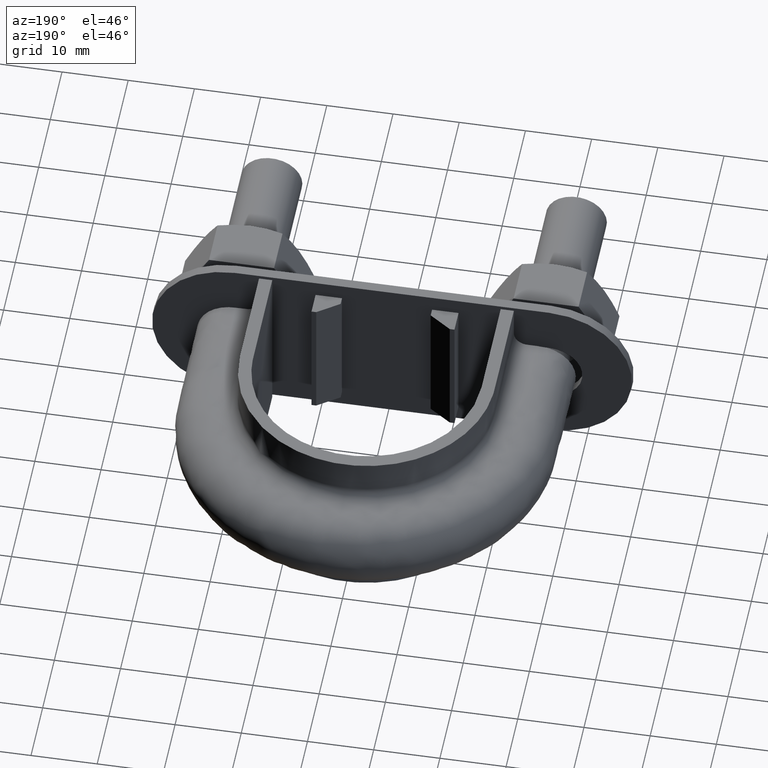
[diagram: clean part render]
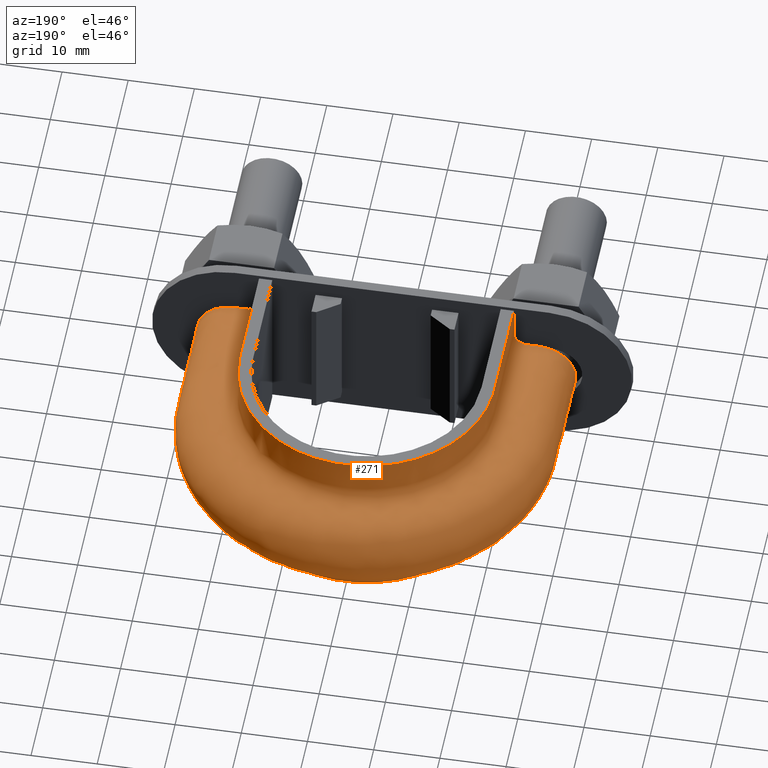
[diagram: same view with one face highlighted and labeled with its STEP entity id]
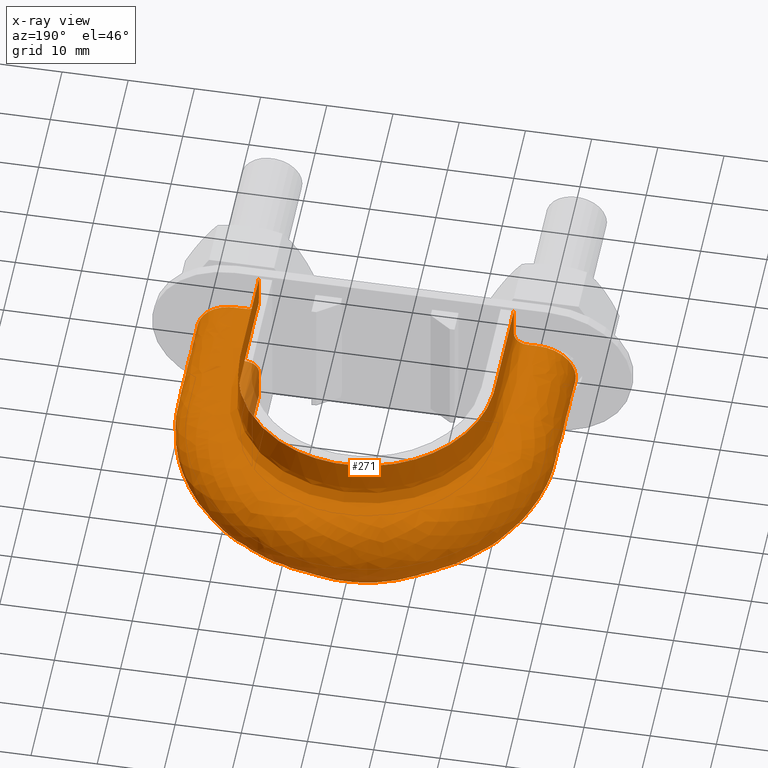
[diagram: x-ray of the same camera — body ghosted, the highlighted face saturated]
A machine part, auxiliary view. The second image highlights one B-rep face of the part: STEP entity #271.
The next image is the same camera in x-ray: the body ghosted, the highlighted face saturated — about 1% of this face is hidden behind the body in this view.
In plain terms, the highlighted face is a freeform B-spline surface patch.
Its self-contained STEP definition (entity closure, byte-faithful):
#271 = ADVANCED_FACE( '', ( #390 ), #391, .F. );
#390 = FACE_OUTER_BOUND( '', #792, .T. );
#391 = B_SPLINE_SURFACE_WITH_KNOTS( '', 3, 3, ( ( #793, #794, #795, #796, #797, #798, #799, #800, #801, #802, #803, #804, #805, #806, #807, #808, #809 ), ( #810, #811, #812, #813, #814, #815, #816, #817, #818, #819, #820, #821, #822, #823, #824, #825, #826 ), ( #827, #828, #829, #830, #831, #832, #833, #834, #835, #836, #837, #838, #839, #840, #841, #842, #843 ), ( #844, #845, #846, #847, #848, #849, #850, #851, #852, #853, #854, #855, #856, #857, #858, #859, #860 ), ( #861, #862, #863, #864, #865, #866, #867, #868, #869, #870, #871, #872, #873, #874, #875, #876, #877 ), ( #878, #879, #880, #881, #882, #883, #884, #885, #886, #887, #888, #889, #890, #891, #892, #893, #894 ), ( #895, #896, #897, #898, #899, #900, #901, #902, #903, #904, #905, #906, #907, #908, #909, #910, #911 ), ( #912, #913, #914, #915, #916, #917, #918, #919, #920, #921, #922, #923, #924, #925, #926, #927, #928 ), ( #929, #930, #931, #932, #933, #934, #935, #936, #937, #938, #939, #940, #941, #942, #943, #944, #945 ), ( #946, #947, #948, #949, #950, #951, #952, #953, #954, #955, #956, #957, #958, #959, #960, #961, #962 ), ( #963, #964, #965, #966, #967, #968, #969, #970, #971, #972, #973, #974, #975, #976, #977, #978, #979 ), ( #980, #981, #982, #983, #984, #985, #986, #987, #988, #989, #990, #991, #992, #993, #994, #995, #996 ), ( #997, #998, #999, #1000, #1001, #1002, #1003, #1004, #1005, #1006, #1007, #1008, #1009, #1010, #1011, #1012, #1013 ), ( #1014, #1015, #1016, #1017, #1018, #1019, #1020, #1021, #1022, #1023, #1024, #1025, #1026, #1027, #1028, #1029, #1030 ), ( #1031, #1032, #1033, #1034, #1035, #1036, #1037, #1038, #1039, #1040, #1041, #1042, #1043, #1044, #1045, #1046, #1047 ), ( #1048, #1049, #1050, #1051, #1052, #1053, #1054, #1055, #1056, #1057, #1058, #1059, #1060, #1061, #1062, #1063, #1064 ), ( #1065, #1066, #1067, #1068, #1069, #1070, #1071, #1072, #1073, #1074, #1075, #1076, #1077, #1078, #1079, #1080, #1081 ), ( #1082, #1083, #1084, #1085, #1086, #1087, #1088, #1089, #1090, #1091, #1092, #1093, #1094, #1095, #1096, #1097, #1098 ), ( #1099, #1100, #1101, #1102, #1103, #1104, #1105, #1106, #1107, #1108, #1109, #1110, #1111, #1112, #1113, #1114, #1115 ), ( #1116, #1117, #1118, #1119, #1120, #1121, #1122, #1123, #1124, #1125, #1126, #1127, #1128, #1129, #1130, #1131, #1132 ), ( #1133, #1134, #1135, #1136, #1137, #1138, #1139, #1140, #1141, #1142, #1143, #1144, #1145, #1146, #1147, #1148, #1149 ), ( #1150, #1151, #1152, #1153, #1154, #1155, #1156, #1157, #1158, #1159, #1160, #1161, #1162, #1163, #1164, #1165, #1166 ), ( #1167, #1168, #1169, #1170, #1171, #1172, #1173, #1174, #1175, #1176, #1177, #1178, #1179, #1180, #1181, #1182, #1183 ), ( #1184, #1185, #1186, #1187, #1188, #1189, #1190, #1191, #1192, #1193, #1194, #1195, #1196, #1197, #1198, #1199, #1200 ), ( #1201, #1202, #1203, #1204, #1205, #1206, #1207, #1208, #1209, #1210, #1211, #1212, #1213, #1214, #1215, #1216, #1217 ), ( #1218, #1219, #1220, #1221, #1222, #1223, #1224, #1225, #1226, #1227, #1228, #1229, #1230, #1231, #1232, #1233, #1234 ), ( #1235, #1236, #1237, #1238, #1239, #1240, #1241, #1242, #1243, #1244, #1245, #1246, #1247, #1248, #1249, #1250, #1251 ), ( #1252, #1253, #1254, #1255, #1256, #1257, #1258, #1259, #1260, #1261, #1262, #1263, #1264, #1265, #1266, #1267, #1268 ), ( #1269, #1270, #1271, #1272, #1273, #1274, #1275, #1276, #1277, #1278, #1279, #1280, #1281, #1282, #1283, #1284, #1285 ), ( #1286, #1287, #1288, #1289, #1290, #1291, #1292, #1293, #1294, #1295, #1296, #1297, #1298, #1299, #1300, #1301, #1302 ), ( #1303, #1304, #1305, #1306, #1307, #1308, #1309, #1310, #1311, #1312, #1313, #1314, #1315, #1316, #1317, #1318, #1319 ) ), .UNSPECIFIED., .F., .F., .F., ( 4, 3, 1, 1, 1, 3, 3, 1, 1, 1, 3, 3, 1, 1, 1, 3, 4 ), ( 4, 3, 1, 1, 1, 1, 1, 1, 1, 3, 4 ), ( 0.000000000000000, 0.0526315789473684, 0.105263157894737, 0.157894736842105, 0.210526315789474, 0.263157894736842, 0.315789473684211, 0.368421052631579, 0.421052631578947, 0.473684210526316, 0.526315789473684, 0.578947368421053, 0.631578947368421, 0.684210526315789, 0.736842105263158, 0.789473684210526, 0.842105263157895 ), ( 0.000000000000000, 1.00000000000000, 1.50000000000000, 2.00000000000000, 3.00000000000000, 4.00000000000000, 5.00000000000000, 6.00000000000000, 6.50000000000000, 7.00000000000000, 8.00000000000000 ), .UNSPECIFIED. );
#792 = EDGE_LOOP( '', ( #1735, #1736, #1737, #1738 ) );
#793 = CARTESIAN_POINT( '', ( -19.2500000000000, 29.6500000000000, 12.5000000000000 ) );
#794 = CARTESIAN_POINT( '', ( -19.2500000000000, 36.0166666666667, 12.5000000000000 ) );
#795 = CARTESIAN_POINT( '', ( -19.2500000000000, 42.3833333333333, 12.5000000000000 ) );
#796 = CARTESIAN_POINT( '', ( -19.2500000000000, 48.7500000000000, 12.5000000000000 ) );
#797 = CARTESIAN_POINT( '', ( -19.2500000000000, 50.4213262566117, 12.5000000000000 ) );
#798 = CARTESIAN_POINT( '', ( -18.7986999693754, 53.7906376447289, 12.5000000000000 ) );
#799 = CARTESIAN_POINT( '', ( -16.2218507540710, 60.0523173587674, 12.5000000000000 ) );
#800 = CARTESIAN_POINT( '', ( -10.0746787092407, 66.2009555474490, 12.5000000000000 ) );
#801 = CARTESIAN_POINT( '', ( 1.36416496972927E-014, 68.8995222262755, 12.5000000000000 ) );
#802 = CARTESIAN_POINT( '', ( 10.0746787092408, 66.2009555474490, 12.5000000000000 ) );
#803 = CARTESIAN_POINT( '', ( 16.2218507540710, 60.0523173587673, 12.5000000000000 ) );
#804 = CARTESIAN_POINT( '', ( 18.7986999693754, 53.7906376447289, 12.5000000000000 ) );
#805 = CARTESIAN_POINT( '', ( 19.2500000000000, 50.4213262566117, 12.5000000000000 ) );
#806 = CARTESIAN_POINT( '', ( 19.2500000000000, 48.7500000000000, 12.5000000000000 ) );
#807 = CARTESIAN_POINT( '', ( 19.2500000000000, 42.3833333333333, 12.5000000000000 ) );
#808 = CARTESIAN_POINT( '', ( 19.2500000000000, 36.0166666666667, 12.5000000000000 ) );
#809 = CARTESIAN_POINT( '', ( 19.2500000000000, 29.6500000000000, 12.5000000000000 ) );
#810 = CARTESIAN_POINT( '', ( -19.2500000000000, 29.6500000000000, 10.8666666666667 ) );
#811 = CARTESIAN_POINT( '', ( -19.2500000000000, 36.0166666666667, 10.8666666666667 ) );
#812 = CARTESIAN_POINT( '', ( -19.2500000000000, 42.3833333333333, 10.8666666666667 ) );
#813 = CARTESIAN_POINT( '', ( -19.2500000000000, 48.7500000000000, 10.8666666666667 ) );
#814 = CARTESIAN_POINT( '', ( -19.2500000000000, 50.4213262566117, 10.8666666666667 ) );
#815 = CARTESIAN_POINT( '', ( -18.7986999693754, 53.7906376447289, 10.8666666666667 ) );
#816 = CARTESIAN_POINT( '', ( -16.2218507540710, 60.0523173587674, 10.8666666666666 ) );
#817 = CARTESIAN_POINT( '', ( -10.0746787092407, 66.2009555474490, 10.8666666666667 ) );
#818 = CARTESIAN_POINT( '', ( 1.32079688282985E-014, 68.8995222262755, 10.8666666666667 ) );
#819 = CARTESIAN_POINT( '', ( 10.0746787092408, 66.2009555474490, 10.8666666666667 ) );
#820 = CARTESIAN_POINT( '', ( 16.2218507540710, 60.0523173587673, 10.8666666666667 ) );
#821 = CARTESIAN_POINT( '', ( 18.7986999693754, 53.7906376447289, 10.8666666666667 ) );
#822 = CARTESIAN_POINT( '', ( 19.2500000000000, 50.4213262566117, 10.8666666666667 ) );
#823 = CARTESIAN_POINT( '', ( 19.2500000000000, 48.7500000000000, 10.8666666666667 ) );
#824 = CARTESIAN_POINT( '', ( 19.2500000000000, 42.3833333333333, 10.8666666666667 ) );
#825 = CARTESIAN_POINT( '', ( 19.2500000000000, 36.0166666666667, 10.8666666666667 ) );
#826 = CARTESIAN_POINT( '', ( 19.2500000000000, 29.6500000000000, 10.8666666666667 ) );
#827 = CARTESIAN_POINT( '', ( -19.2500000000000, 29.6500000000000, 9.23333333333333 ) );
#828 = CARTESIAN_POINT( '', ( -19.2500000000000, 36.0166666666667, 9.23333333333333 ) );
#829 = CARTESIAN_POINT( '', ( -19.2500000000000, 42.3833333333333, 9.23333333333333 ) );
#830 = CARTESIAN_POINT( '', ( -19.2500000000000, 48.7500000000000, 9.23333333333333 ) );
#831 = CARTESIAN_POINT( '', ( -19.2500000000000, 50.4213262566117, 9.23333333333333 ) );
#832 = CARTESIAN_POINT( '', ( -18.7986999693754, 53.7906376447289, 9.23333333333334 ) );
#833 = CARTESIAN_POINT( '', ( -16.2218507540710, 60.0523173587674, 9.23333333333331 ) );
#834 = CARTESIAN_POINT( '', ( -10.0746787092407, 66.2009555474490, 9.23333333333336 ) );
#835 = CARTESIAN_POINT( '', ( 1.45090114352811E-014, 68.8995222262755, 9.23333333333332 ) );
#836 = CARTESIAN_POINT( '', ( 10.0746787092408, 66.2009555474490, 9.23333333333335 ) );
#837 = CARTESIAN_POINT( '', ( 16.2218507540710, 60.0523173587673, 9.23333333333333 ) );
#838 = CARTESIAN_POINT( '', ( 18.7986999693754, 53.7906376447289, 9.23333333333334 ) );
#839 = CARTESIAN_POINT( '', ( 19.2500000000000, 50.4213262566117, 9.23333333333333 ) );
#840 = CARTESIAN_POINT( '', ( 19.2500000000000, 48.7500000000000, 9.23333333333333 ) );
#841 = CARTESIAN_POINT( '', ( 19.2500000000000, 42.3833333333333, 9.23333333333333 ) );
#842 = CARTESIAN_POINT( '', ( 19.2500000000000, 36.0166666666667, 9.23333333333333 ) );
#843 = CARTESIAN_POINT( '', ( 19.2500000000000, 29.6500000000000, 9.23333333333333 ) );
#844 = CARTESIAN_POINT( '', ( -19.2500000000000, 29.6500000000000, 7.60000000000000 ) );
#845 = CARTESIAN_POINT( '', ( -19.2500000000000, 36.0166666666667, 7.60000000000000 ) );
#846 = CARTESIAN_POINT( '', ( -19.2500000000000, 42.3833333333333, 7.60000000000000 ) );
#847 = CARTESIAN_POINT( '', ( -19.2500000000000, 48.7500000000000, 7.60000000000000 ) );
#848 = CARTESIAN_POINT( '', ( -19.2500000000000, 50.4213262566117, 7.59999999999999 ) );
#849 = CARTESIAN_POINT( '', ( -18.7986999693754, 53.7906376447289, 7.60000000000001 ) );
#850 = CARTESIAN_POINT( '', ( -16.2218507540710, 60.0523173587674, 7.59999999999998 ) );
#851 = CARTESIAN_POINT( '', ( -10.0746787092407, 66.2009555474490, 7.60000000000001 ) );
#852 = CARTESIAN_POINT( '', ( 1.49426923042753E-014, 68.8995222262755, 7.59999999999999 ) );
#853 = CARTESIAN_POINT( '', ( 10.0746787092408, 66.2009555474490, 7.60000000000001 ) );
#854 = CARTESIAN_POINT( '', ( 16.2218507540710, 60.0523173587673, 7.59999999999999 ) );
#855 = CARTESIAN_POINT( '', ( 18.7986999693754, 53.7906376447289, 7.60000000000000 ) );
#856 = CARTESIAN_POINT( '', ( 19.2500000000000, 50.4213262566117, 7.59999999999999 ) );
#857 = CARTESIAN_POINT( '', ( 19.2500000000000, 48.7500000000000, 7.59999999999999 ) );
#858 = CARTESIAN_POINT( '', ( 19.2500000000000, 42.3833333333333, 7.60000000000000 ) );
#859 = CARTESIAN_POINT( '', ( 19.2500000000000, 36.0166666666667, 7.60000000000000 ) );
#860 = CARTESIAN_POINT( '', ( 19.2500000000000, 29.6500000000000, 7.60000000000000 ) );
#861 = CARTESIAN_POINT( '', ( -19.2500000000000, 29.6500000000000, 7.33823584172333 ) );
#862 = CARTESIAN_POINT( '', ( -19.2500000000000, 36.0166666666667, 7.33823584172333 ) );
#863 = CARTESIAN_POINT( '', ( -19.2500000000000, 42.3833333333333, 7.33823584172333 ) );
#864 = CARTESIAN_POINT( '', ( -19.2500000000000, 48.7500000000000, 7.33823584172333 ) );
#865 = CARTESIAN_POINT( '', ( -19.2500000000000, 50.4213262566117, 7.33823584172332 ) );
#866 = CARTESIAN_POINT( '', ( -18.7986999693754, 53.7906376447289, 7.33823584172334 ) );
#867 = CARTESIAN_POINT( '', ( -16.2218507540710, 60.0523173587674, 7.33823584172331 ) );
#868 = CARTESIAN_POINT( '', ( -10.0746787092407, 66.2009555474490, 7.33823584172335 ) );
#869 = CARTESIAN_POINT( '', ( 1.23406070903101E-014, 68.8995222262755, 7.33823584172332 ) );
#870 = CARTESIAN_POINT( '', ( 10.0746787092408, 66.2009555474490, 7.33823584172334 ) );
#871 = CARTESIAN_POINT( '', ( 16.2218507540710, 60.0523173587673, 7.33823584172332 ) );
#872 = CARTESIAN_POINT( '', ( 18.7986999693754, 53.7906376447289, 7.33823584172333 ) );
#873 = CARTESIAN_POINT( '', ( 19.2500000000000, 50.4213262566117, 7.33823584172332 ) );
#874 = CARTESIAN_POINT( '', ( 19.2500000000000, 48.7500000000000, 7.33823584172332 ) );
#875 = CARTESIAN_POINT( '', ( 19.2500000000000, 42.3833333333333, 7.33823584172333 ) );
#876 = CARTESIAN_POINT( '', ( 19.2500000000000, 36.0166666666667, 7.33823584172333 ) );
#877 = CARTESIAN_POINT( '', ( 19.2500000000000, 29.6500000000000, 7.33823584172333 ) );
#878 = CARTESIAN_POINT( '', ( -19.3541362568359, 29.6500000000000, 6.81470752517000 ) );
#879 = CARTESIAN_POINT( '', ( -19.3541362568359, 36.0166666666667, 6.81470752517000 ) );
#880 = CARTESIAN_POINT( '', ( -19.3541362568359, 42.3833333333333, 6.81470752517000 ) );
#881 = CARTESIAN_POINT( '', ( -19.3541362568359, 48.7500000000000, 6.81470752517000 ) );
#882 = CARTESIAN_POINT( '', ( -19.3541362568359, 50.4306273319190, 6.81470752517000 ) );
#883 = CARTESIAN_POINT( '', ( -18.9004403577331, 53.8178005625328, 6.81470752517001 ) );
#884 = CARTESIAN_POINT( '', ( -16.3095794980578, 60.1135201915719, 6.81470752516999 ) );
#885 = CARTESIAN_POINT( '', ( -10.1291877296943, 66.2953373894582, 6.81470752517002 ) );
#886 = CARTESIAN_POINT( '', ( 1.27876378174015E-014, 69.0085356905248, 6.81470752516999 ) );
#887 = CARTESIAN_POINT( '', ( 10.1291877296943, 66.2953373894582, 6.81470752517001 ) );
#888 = CARTESIAN_POINT( '', ( 16.3095794980579, 60.1135201915719, 6.81470752517000 ) );
#889 = CARTESIAN_POINT( '', ( 18.9004403577331, 53.8178005625328, 6.81470752517000 ) );
#890 = CARTESIAN_POINT( '', ( 19.3541362568359, 50.4306273319190, 6.81470752517000 ) );
#891 = CARTESIAN_POINT( '', ( 19.3541362568359, 48.7500000000000, 6.81470752517000 ) );
#892 = CARTESIAN_POINT( '', ( 19.3541362568359, 42.3833333333333, 6.81470752517000 ) );
#893 = CARTESIAN_POINT( '', ( 19.3541362568359, 36.0166666666667, 6.81470752517000 ) );
#894 = CARTESIAN_POINT( '', ( 19.3541362568359, 29.6500000000000, 6.81470752517000 ) );
#895 = CARTESIAN_POINT( '', ( -19.7989687109389, 29.6500000000000, 6.14896871093887 ) );
#896 = CARTESIAN_POINT( '', ( -19.7989687109389, 36.0166666666667, 6.14896871093887 ) );
#897 = CARTESIAN_POINT( '', ( -19.7989687109389, 42.3833333333333, 6.14896871093887 ) );
#898 = CARTESIAN_POINT( '', ( -19.7989687109389, 48.7500000000000, 6.14896871093887 ) );
#899 = CARTESIAN_POINT( '', ( -19.7989687109389, 50.4703581642004, 6.14896871093887 ) );
#900 = CARTESIAN_POINT( '', ( -19.3350385275698, 53.9338307306454, 6.14896871093888 ) );
#901 = CARTESIAN_POINT( '', ( -16.6843249869854, 60.3749565744582, 6.14896871093885 ) );
#902 = CARTESIAN_POINT( '', ( -10.3620305653774, 66.6985025086908, 6.14896871093888 ) );
#903 = CARTESIAN_POINT( '', ( 1.37120253245095E-014, 69.4742018120629, 6.14896871093886 ) );
#904 = CARTESIAN_POINT( '', ( 10.3620305653774, 66.6985025086908, 6.14896871093888 ) );
#905 = CARTESIAN_POINT( '', ( 16.6843249869854, 60.3749565744581, 6.14896871093886 ) );
#906 = CARTESIAN_POINT( '', ( 19.3350385275698, 53.9338307306455, 6.14896871093887 ) );
#907 = CARTESIAN_POINT( '', ( 19.7989687109389, 50.4703581642004, 6.14896871093887 ) );
#908 = CARTESIAN_POINT( '', ( 19.7989687109389, 48.7500000000000, 6.14896871093887 ) );
#909 = CARTESIAN_POINT( '', ( 19.7989687109389, 42.3833333333333, 6.14896871093887 ) );
#910 = CARTESIAN_POINT( '', ( 19.7989687109389, 36.0166666666667, 6.14896871093887 ) );
#911 = CARTESIAN_POINT( '', ( 19.7989687109389, 29.6500000000000, 6.14896871093887 ) );
#912 = CARTESIAN_POINT( '', ( -20.4647075251700, 29.6500000000000, 5.70413625683590 ) );
#913 = CARTESIAN_POINT( '', ( -20.4647075251700, 36.0166666666667, 5.70413625683590 ) );
#914 = CARTESIAN_POINT( '', ( -20.4647075251700, 42.3833333333333, 5.70413625683590 ) );
#915 = CARTESIAN_POINT( '', ( -20.4647075251700, 48.7500000000000, 5.70413625683590 ) );
#916 = CARTESIAN_POINT( '', ( -20.4647075251700, 50.5298195567481, 5.70413625683590 ) );
#917 = CARTESIAN_POINT( '', ( -19.9854606529912, 54.1074821488859, 5.70413625683591 ) );
#918 = CARTESIAN_POINT( '', ( -17.2451712452472, 60.7662237716561, 5.70413625683589 ) );
#919 = CARTESIAN_POINT( '', ( -10.7105044950561, 67.3018817494401, 5.70413625683592 ) );
#920 = CARTESIAN_POINT( '', ( 1.37973704191942E-014, 70.1711204130350, 5.70413625683589 ) );
#921 = CARTESIAN_POINT( '', ( 10.7105044950562, 67.3018817494401, 5.70413625683591 ) );
#922 = CARTESIAN_POINT( '', ( 17.2451712452472, 60.7662237716561, 5.70413625683590 ) );
#923 = CARTESIAN_POINT( '', ( 19.9854606529912, 54.1074821488860, 5.70413625683590 ) );
#924 = CARTESIAN_POINT( '', ( 20.4647075251700, 50.5298195567481, 5.70413625683590 ) );
#925 = CARTESIAN_POINT( '', ( 20.4647075251700, 48.7500000000000, 5.70413625683590 ) );
#926 = CARTESIAN_POINT( '', ( 20.4647075251700, 42.3833333333333, 5.70413625683590 ) );
#927 = CARTESIAN_POINT( '', ( 20.4647075251700, 36.0166666666667, 5.70413625683590 ) );
#928 = CARTESIAN_POINT( '', ( 20.4647075251700, 29.6500000000000, 5.70413625683590 ) );
#929 = CARTESIAN_POINT( '', ( -20.9882358417233, 29.6500000000000, 5.59999999999999 ) );
#930 = CARTESIAN_POINT( '', ( -20.9882358417233, 36.0166666666667, 5.59999999999999 ) );
#931 = CARTESIAN_POINT( '', ( -20.9882358417233, 42.3833333333333, 5.59999999999999 ) );
#932 = CARTESIAN_POINT( '', ( -20.9882358417233, 48.7500000000000, 5.59999999999999 ) );
#933 = CARTESIAN_POINT( '', ( -20.9882358417233, 50.5765792199599, 5.59999999999999 ) );
#934 = CARTESIAN_POINT( '', ( -20.4969441253259, 54.2440393582827, 5.60000000000000 ) );
#935 = CARTESIAN_POINT( '', ( -17.6862134244870, 61.0739111900443, 5.59999999999998 ) );
#936 = CARTESIAN_POINT( '', ( -10.9845398462594, 67.7763713111123, 5.60000000000001 ) );
#937 = CARTESIAN_POINT( '', ( 1.21297612120437E-014, 70.7191681070289, 5.59999999999999 ) );
#938 = CARTESIAN_POINT( '', ( 10.9845398462594, 67.7763713111123, 5.60000000000000 ) );
#939 = CARTESIAN_POINT( '', ( 17.6862134244870, 61.0739111900443, 5.59999999999999 ) );
#940 = CARTESIAN_POINT( '', ( 20.4969441253259, 54.2440393582828, 5.59999999999999 ) );
#941 = CARTESIAN_POINT( '', ( 20.9882358417234, 50.5765792199599, 5.59999999999999 ) );
#942 = CARTESIAN_POINT( '', ( 20.9882358417234, 48.7500000000000, 5.59999999999999 ) );
#943 = CARTESIAN_POINT( '', ( 20.9882358417233, 42.3833333333333, 5.59999999999999 ) );
#944 = CARTESIAN_POINT( '', ( 20.9882358417233, 36.0166666666667, 5.59999999999999 ) );
#945 = CARTESIAN_POINT( '', ( 20.9882358417233, 29.6500000000000, 5.59999999999999 ) );
#946 = CARTESIAN_POINT( '', ( -21.2500000000000, 29.6500000000000, 5.59999999999999 ) );
#947 = CARTESIAN_POINT( '', ( -21.2500000000000, 36.0166666666667, 5.59999999999999 ) );
#948 = CARTESIAN_POINT( '', ( -21.2500000000000, 42.3833333333333, 5.59999999999999 ) );
#949 = CARTESIAN_POINT( '', ( -21.2500000000000, 48.7500000000000, 5.59999999999999 ) );
#950 = CARTESIAN_POINT( '', ( -21.2500000000000, 50.5999590515658, 5.59999999999999 ) );
#951 = CARTESIAN_POINT( '', ( -20.7526858614932, 54.3123179629811, 5.60000000000000 ) );
#952 = CARTESIAN_POINT( '', ( -17.9067345141069, 61.2277548992384, 5.59999999999998 ) );
#953 = CARTESIAN_POINT( '', ( -11.1215575218610, 68.0136160919484, 5.60000000000001 ) );
#954 = CARTESIAN_POINT( '', ( 1.30306800844452E-014, 70.9931919540258, 5.59999999999999 ) );
#955 = CARTESIAN_POINT( '', ( 11.1215575218610, 68.0136160919484, 5.60000000000000 ) );
#956 = CARTESIAN_POINT( '', ( 17.9067345141070, 61.2277548992384, 5.59999999999999 ) );
#957 = CARTESIAN_POINT( '', ( 20.7526858614933, 54.3123179629812, 5.59999999999999 ) );
#958 = CARTESIAN_POINT( '', ( 21.2500000000000, 50.5999590515658, 5.59999999999999 ) );
#959 = CARTESIAN_POINT( '', ( 21.2500000000000, 48.7500000000000, 5.59999999999999 ) );
#960 = CARTESIAN_POINT( '', ( 21.2500000000000, 42.3833333333333, 5.59999999999999 ) );
#961 = CARTESIAN_POINT( '', ( 21.2500000000000, 36.0166666666667, 5.59999999999999 ) );
#962 = CARTESIAN_POINT( '', ( 21.2500000000000, 29.6500000000000, 5.59999999999999 ) );
#963 = CARTESIAN_POINT( '', ( -21.8333333333333, 29.6500000000000, 5.60000000000001 ) );
#964 = CARTESIAN_POINT( '', ( -21.8333333333333, 36.0166666666667, 5.60000000000001 ) );
#965 = CARTESIAN_POINT( '', ( -21.8333333333333, 42.3833333333333, 5.60000000000001 ) );
#966 = CARTESIAN_POINT( '', ( -21.8333333333333, 48.7500000000000, 5.60000000000001 ) );
#967 = CARTESIAN_POINT( '', ( -21.8333333333333, 50.6520602834274, 5.60000000000001 ) );
#968 = CARTESIAN_POINT( '', ( -21.3225984133610, 54.4644747224713, 5.60000000000002 ) );
#969 = CARTESIAN_POINT( '', ( -18.3981589441174, 61.5705908485425, 5.60000000000000 ) );
#970 = CARTESIAN_POINT( '', ( -11.4268971755419, 68.5423087507608, 5.60000000000002 ) );
#971 = CARTESIAN_POINT( '', ( 1.31054611209446E-014, 71.6038456246197, 5.60000000000000 ) );
#972 = CARTESIAN_POINT( '', ( 11.4268971755419, 68.5423087507608, 5.60000000000002 ) );
#973 = CARTESIAN_POINT( '', ( 18.3981589441175, 61.5705908485425, 5.60000000000000 ) );
#974 = CARTESIAN_POINT( '', ( 21.3225984133610, 54.4644747224714, 5.60000000000001 ) );
#975 = CARTESIAN_POINT( '', ( 21.8333333333334, 50.6520602834274, 5.60000000000001 ) );
#976 = CARTESIAN_POINT( '', ( 21.8333333333334, 48.7500000000000, 5.60000000000001 ) );
#977 = CARTESIAN_POINT( '', ( 21.8333333333334, 42.3833333333333, 5.60000000000001 ) );
#978 = CARTESIAN_POINT( '', ( 21.8333333333334, 36.0166666666667, 5.60000000000001 ) );
#979 = CARTESIAN_POINT( '', ( 21.8333333333334, 29.6500000000000, 5.60000000000001 ) );
#980 = CARTESIAN_POINT( '', ( -22.4166666666667, 29.6500000000000, 5.60000000000001 ) );
#981 = CARTESIAN_POINT( '', ( -22.4166666666667, 36.0166666666667, 5.60000000000001 ) );
#982 = CARTESIAN_POINT( '', ( -22.4166666666667, 42.3833333333333, 5.60000000000001 ) );
#983 = CARTESIAN_POINT( '', ( -22.4166666666667, 48.7500000000000, 5.60000000000001 ) );
#984 = CARTESIAN_POINT( '', ( -22.4166666666667, 50.7041615152890, 5.60000000000001 ) );
#985 = CARTESIAN_POINT( '', ( -21.8925109652287, 54.6166314819616, 5.60000000000002 ) );
#986 = CARTESIAN_POINT( '', ( -18.8895833741279, 61.9134267978466, 5.60000000000000 ) );
#987 = CARTESIAN_POINT( '', ( -11.7322368292228, 69.0710014095730, 5.60000000000002 ) );
#988 = CARTESIAN_POINT( '', ( 1.40476038954324E-014, 72.2144992952135, 5.60000000000000 ) );
#989 = CARTESIAN_POINT( '', ( 11.7322368292228, 69.0710014095731, 5.60000000000002 ) );
#990 = CARTESIAN_POINT( '', ( 18.8895833741280, 61.9134267978465, 5.60000000000000 ) );
#991 = CARTESIAN_POINT( '', ( 21.8925109652287, 54.6166314819616, 5.60000000000001 ) );
#992 = CARTESIAN_POINT( '', ( 22.4166666666667, 50.7041615152890, 5.60000000000001 ) );
#993 = CARTESIAN_POINT( '', ( 22.4166666666667, 48.7500000000000, 5.60000000000001 ) );
#994 = CARTESIAN_POINT( '', ( 22.4166666666667, 42.3833333333333, 5.60000000000001 ) );
#995 = CARTESIAN_POINT( '', ( 22.4166666666667, 36.0166666666667, 5.60000000000001 ) );
#996 = CARTESIAN_POINT( '', ( 22.4166666666667, 29.6500000000000, 5.60000000000001 ) );
#997 = CARTESIAN_POINT( '', ( -23.0000000000000, 29.6500000000000, 5.60000000000001 ) );
#998 = CARTESIAN_POINT( '', ( -23.0000000000000, 36.0166666666667, 5.60000000000001 ) );
#999 = CARTESIAN_POINT( '', ( -23.0000000000000, 42.3833333333333, 5.60000000000001 ) );
#1000 = CARTESIAN_POINT( '', ( -23.0000000000000, 48.7500000000000, 5.60000000000001 ) );
#1001 = CARTESIAN_POINT( '', ( -23.0000000000000, 50.7562627471506, 5.60000000000001 ) );
#1002 = CARTESIAN_POINT( '', ( -22.4624235170963, 54.7687882414518, 5.60000000000002 ) );
#1003 = CARTESIAN_POINT( '', ( -19.3810078041384, 62.2562627471506, 5.60000000000000 ) );
#1004 = CARTESIAN_POINT( '', ( -12.0375764829036, 69.5996940683854, 5.60000000000002 ) );
#1005 = CARTESIAN_POINT( '', ( 1.41223849319318E-014, 72.8251529658073, 5.60000000000000 ) );
#1006 = CARTESIAN_POINT( '', ( 12.0375764829037, 69.5996940683854, 5.60000000000002 ) );
#1007 = CARTESIAN_POINT( '', ( 19.3810078041385, 62.2562627471506, 5.60000000000000 ) );
#1008 = CARTESIAN_POINT( '', ( 22.4624235170964, 54.7687882414519, 5.60000000000001 ) );
#1009 = CARTESIAN_POINT( '', ( 23.0000000000000, 50.7562627471506, 5.60000000000001 ) );
#1010 = CARTESIAN_POINT( '', ( 23.0000000000000, 48.7500000000000, 5.60000000000001 ) );
#1011 = CARTESIAN_POINT( '', ( 23.0000000000000, 42.3833333333333, 5.60000000000001 ) );
#1012 = CARTESIAN_POINT( '', ( 23.0000000000000, 36.0166666666667, 5.60000000000001 ) );
#1013 = CARTESIAN_POINT( '', ( 23.0000000000000, 29.6500000000000, 5.60000000000001 ) );
#1014 = CARTESIAN_POINT( '', ( -24.4627416997969, 29.6500000000000, 5.60000000000001 ) );
#1015 = CARTESIAN_POINT( '', ( -24.4627416997969, 36.0166666666667, 5.60000000000001 ) );
#1016 = CARTESIAN_POINT( '', ( -24.4627416997969, 42.3833333333333, 5.60000000000001 ) );
#1017 = CARTESIAN_POINT( '', ( -24.4627416997969, 48.7500000000000, 5.60000000000001 ) );
#1018 = CARTESIAN_POINT( '', ( -24.4627416997969, 50.8869095662159, 5.60000000000001 ) );
#1019 = CARTESIAN_POINT( '', ( -23.8915118397042, 55.1503300191872, 5.60000000000002 ) );
#1020 = CARTESIAN_POINT( '', ( -20.6132826716961, 63.1159435001275, 5.60000000000000 ) );
#1021 = CARTESIAN_POINT( '', ( -12.8032331298304, 70.9254211513933, 5.60000000000003 ) );
#1022 = CARTESIAN_POINT( '', ( 1.38762217894092E-014, 74.3564019739987, 5.60000000000001 ) );
#1023 = CARTESIAN_POINT( '', ( 12.8032331298304, 70.9254211513933, 5.60000000000002 ) );
#1024 = CARTESIAN_POINT( '', ( 20.6132826716961, 63.1159435001275, 5.60000000000001 ) );
#1025 = CARTESIAN_POINT( '', ( 23.8915118397042, 55.1503300191873, 5.60000000000001 ) );
#1026 = CARTESIAN_POINT( '', ( 24.4627416997970, 50.8869095662159, 5.60000000000001 ) );
#1027 = CARTESIAN_POINT( '', ( 24.4627416997970, 48.7500000000000, 5.60000000000001 ) );
#1028 = CARTESIAN_POINT( '', ( 24.4627416997970, 42.3833333333333, 5.60000000000001 ) );
#1029 = CARTESIAN_POINT( '', ( 24.4627416997970, 36.0166666666667, 5.60000000000001 ) );
#1030 = CARTESIAN_POINT( '', ( 24.4627416997970, 29.6500000000000, 5.60000000000001 ) );
#1031 = CARTESIAN_POINT( '', ( -27.3882250993908, 29.6500000000000, 4.38822509939087 ) );
#1032 = CARTESIAN_POINT( '', ( -27.3882250993908, 36.0166666666667, 4.38822509939087 ) );
#1033 = CARTESIAN_POINT( '', ( -27.3882250993908, 42.3833333333333, 4.38822509939087 ) );
#1034 = CARTESIAN_POINT( '', ( -27.3882250993908, 48.7500000000000, 4.38822509939087 ) );
#1035 = CARTESIAN_POINT( '', ( -27.3882250993908, 51.1482032043465, 4.38822509939087 ) );
#1036 = CARTESIAN_POINT( '', ( -26.7496884849199, 55.9134135746581, 4.38822509939088 ) );
#1037 = CARTESIAN_POINT( '', ( -23.0778324068114, 64.8353050060813, 4.38822509939086 ) );
#1038 = CARTESIAN_POINT( '', ( -14.3345464236839, 73.5768753174093, 4.38822509939088 ) );
#1039 = CARTESIAN_POINT( '', ( 1.64196615873233E-014, 77.4188999903816, 4.38822509939087 ) );
#1040 = CARTESIAN_POINT( '', ( 14.3345464236839, 73.5768753174092, 4.38822509939088 ) );
#1041 = CARTESIAN_POINT( '', ( 23.0778324068114, 64.8353050060812, 4.38822509939087 ) );
#1042 = CARTESIAN_POINT( '', ( 26.7496884849199, 55.9134135746582, 4.38822509939087 ) );
#1043 = CARTESIAN_POINT( '', ( 27.3882250993909, 51.1482032043465, 4.38822509939087 ) );
#1044 = CARTESIAN_POINT( '', ( 27.3882250993909, 48.7500000000000, 4.38822509939087 ) );
#1045 = CARTESIAN_POINT( '', ( 27.3882250993909, 42.3833333333333, 4.38822509939087 ) );
#1046 = CARTESIAN_POINT( '', ( 27.3882250993909, 36.0166666666667, 4.38822509939087 ) );
#1047 = CARTESIAN_POINT( '', ( 27.3882250993909, 29.6500000000000, 4.38822509939087 ) );
#1048 = CARTESIAN_POINT( '', ( -29.2058874503046, 29.6500000000000, 9.94452457394279E-015 ) );
#1049 = CARTESIAN_POINT( '', ( -29.2058874503046, 36.0166666666667, 9.94452457394279E-015 ) );
#1050 = CARTESIAN_POINT( '', ( -29.2058874503046, 42.3833333333333, 9.94452457394279E-015 ) );
#1051 = CARTESIAN_POINT( '', ( -29.2058874503046, 48.7500000000000, 9.94452457394279E-015 ) );
#1052 = CARTESIAN_POINT( '', ( -29.2058874503046, 51.3105502573598, 9.94452457394278E-015 ) );
#1053 = CARTESIAN_POINT( '', ( -28.5255317800794, 56.3875329115080, 9.94452457394280E-015 ) );
#1054 = CARTESIAN_POINT( '', ( -24.6091072949531, 65.9035792876637, 9.94452457394276E-015 ) );
#1055 = CARTESIAN_POINT( '', ( -15.2859825255184, 75.2242777307709, 9.94452457394281E-015 ) );
#1056 = CARTESIAN_POINT( '', ( 1.83874022197697E-014, 79.3216923100714, 9.94452457394278E-015 ) );
#1057 = CARTESIAN_POINT( '', ( 15.2859825255184, 75.2242777307709, 9.94452457394280E-015 ) );
#1058 = CARTESIAN_POINT( '', ( 24.6091072949531, 65.9035792876637, 9.94452457394278E-015 ) );
#1059 = CARTESIAN_POINT( '', ( 28.5255317800795, 56.3875329115080, 9.94452457394279E-015 ) );
#1060 = CARTESIAN_POINT( '', ( 29.2058874503046, 51.3105502573598, 9.94452457394278E-015 ) );
#1061 = CARTESIAN_POINT( '', ( 29.2058874503046, 48.7500000000000, 9.94452457394278E-015 ) );
#1062 = CARTESIAN_POINT( '', ( 29.2058874503046, 42.3833333333333, 9.94452457394279E-015 ) );
#1063 = CARTESIAN_POINT( '', ( 29.2058874503046, 36.0166666666667, 9.94452457394279E-015 ) );
#1064 = CARTESIAN_POINT( '', ( 29.2058874503046, 29.6500000000000, 9.94452457394279E-015 ) );
#1065 = CARTESIAN_POINT( '', ( -27.3882250993909, 29.6500000000000, -4.38822509939085 ) );
#1066 = CARTESIAN_POINT( '', ( -27.3882250993909, 36.0166666666667, -4.38822509939085 ) );
#1067 = CARTESIAN_POINT( '', ( -27.3882250993909, 42.3833333333333, -4.38822509939085 ) );
#1068 = CARTESIAN_POINT( '', ( -27.3882250993908, 48.7500000000000, -4.38822509939085 ) );
#1069 = CARTESIAN_POINT( '', ( -27.3882250993909, 51.1482032043465, -4.38822509939085 ) );
#1070 = CARTESIAN_POINT( '', ( -26.7496884849199, 55.9134135746581, -4.38822509939085 ) );
#1071 = CARTESIAN_POINT( '', ( -23.0778324068114, 64.8353050060813, -4.38822509939084 ) );
#1072 = CARTESIAN_POINT( '', ( -14.3345464236839, 73.5768753174092, -4.38822509939086 ) );
#1073 = CARTESIAN_POINT( '', ( 2.16238320152537E-014, 77.4188999903817, -4.38822509939084 ) );
#1074 = CARTESIAN_POINT( '', ( 14.3345464236839, 73.5768753174092, -4.38822509939086 ) );
#1075 = CARTESIAN_POINT( '', ( 23.0778324068114, 64.8353050060813, -4.38822509939085 ) );
#1076 = CARTESIAN_POINT( '', ( 26.7496884849199, 55.9134135746581, -4.38822509939085 ) );
#1077 = CARTESIAN_POINT( '', ( 27.3882250993909, 51.1482032043465, -4.38822509939085 ) );
#1078 = CARTESIAN_POINT( '', ( 27.3882250993909, 48.7500000000000, -4.38822509939085 ) );
#1079 = CARTESIAN_POINT( '', ( 27.3882250993909, 42.3833333333333, -4.38822509939085 ) );
#1080 = CARTESIAN_POINT( '', ( 27.3882250993909, 36.0166666666667, -4.38822509939085 ) );
#1081 = CARTESIAN_POINT( '', ( 27.3882250993909, 29.6500000000000, -4.38822509939085 ) );
#1082 = CARTESIAN_POINT( '', ( -24.4627416997969, 29.6500000000000, -5.59999999999999 ) );
#1083 = CARTESIAN_POINT( '', ( -24.4627416997969, 36.0166666666667, -5.59999999999999 ) );
#1084 = CARTESIAN_POINT( '', ( -24.4627416997969, 42.3833333333333, -5.59999999999999 ) );
#1085 = CARTESIAN_POINT( '', ( -24.4627416997969, 48.7500000000000, -5.59999999999999 ) );
#1086 = CARTESIAN_POINT( '', ( -24.4627416997969, 50.8869095662159, -5.59999999999999 ) );
#1087 = CARTESIAN_POINT( '', ( -23.8915118397042, 55.1503300191872, -5.60000000000000 ) );
#1088 = CARTESIAN_POINT( '', ( -20.6132826716961, 63.1159435001275, -5.59999999999998 ) );
#1089 = CARTESIAN_POINT( '', ( -12.8032331298304, 70.9254211513934, -5.60000000000001 ) );
#1090 = CARTESIAN_POINT( '', ( 2.03814348243222E-014, 74.3564019739987, -5.59999999999999 ) );
#1091 = CARTESIAN_POINT( '', ( 12.8032331298304, 70.9254211513933, -5.60000000000000 ) );
#1092 = CARTESIAN_POINT( '', ( 20.6132826716961, 63.1159435001275, -5.59999999999999 ) );
#1093 = CARTESIAN_POINT( '', ( 23.8915118397042, 55.1503300191873, -5.59999999999999 ) );
#1094 = CARTESIAN_POINT( '', ( 24.4627416997970, 50.8869095662159, -5.59999999999999 ) );
#1095 = CARTESIAN_POINT( '', ( 24.4627416997970, 48.7500000000000, -5.59999999999999 ) );
#1096 = CARTESIAN_POINT( '', ( 24.4627416997970, 42.3833333333333, -5.59999999999999 ) );
#1097 = CARTESIAN_POINT( '', ( 24.4627416997970, 36.0166666666667, -5.59999999999999 ) );
#1098 = CARTESIAN_POINT( '', ( 24.4627416997970, 29.6500000000000, -5.59999999999999 ) );
#1099 = CARTESIAN_POINT( '', ( -23.0000000000000, 29.6500000000000, -5.59999999999999 ) );
#1100 = CARTESIAN_POINT( '', ( -23.0000000000000, 36.0166666666667, -5.59999999999999 ) );
#1101 = CARTESIAN_POINT( '', ( -23.0000000000000, 42.3833333333333, -5.59999999999999 ) );
#1102 = CARTESIAN_POINT( '', ( -23.0000000000000, 48.7500000000000, -5.59999999999999 ) );
#1103 = CARTESIAN_POINT( '', ( -23.0000000000000, 50.7562627471506, -5.59999999999999 ) );
#1104 = CARTESIAN_POINT( '', ( -22.4624235170963, 54.7687882414518, -5.60000000000000 ) );
#1105 = CARTESIAN_POINT( '', ( -19.3810078041384, 62.2562627471506, -5.59999999999998 ) );
#1106 = CARTESIAN_POINT( '', ( -12.0375764829036, 69.5996940683854, -5.60000000000001 ) );
#1107 = CARTESIAN_POINT( '', ( 2.01939170978507E-014, 72.8251529658073, -5.59999999999999 ) );
#1108 = CARTESIAN_POINT( '', ( 12.0375764829037, 69.5996940683854, -5.60000000000000 ) );
#1109 = CARTESIAN_POINT( '', ( 19.3810078041384, 62.2562627471506, -5.59999999999999 ) );
#1110 = CARTESIAN_POINT( '', ( 22.4624235170964, 54.7687882414518, -5.59999999999999 ) );
#1111 = CARTESIAN_POINT( '', ( 23.0000000000000, 50.7562627471506, -5.59999999999999 ) );
#1112 = CARTESIAN_POINT( '', ( 23.0000000000000, 48.7500000000000, -5.59999999999999 ) );
#1113 = CARTESIAN_POINT( '', ( 23.0000000000000, 42.3833333333333, -5.59999999999999 ) );
#1114 = CARTESIAN_POINT( '', ( 23.0000000000000, 36.0166666666667, -5.59999999999999 ) );
#1115 = CARTESIAN_POINT( '', ( 23.0000000000000, 29.6500000000000, -5.59999999999999 ) );
#1116 = CARTESIAN_POINT( '', ( -22.4166666666667, 29.6500000000000, -5.59999999999999 ) );
#1117 = CARTESIAN_POINT( '', ( -22.4166666666667, 36.0166666666667, -5.59999999999999 ) );
#1118 = CARTESIAN_POINT( '', ( -22.4166666666667, 42.3833333333333, -5.59999999999999 ) );
#1119 = CARTESIAN_POINT( '', ( -22.4166666666667, 48.7500000000000, -5.59999999999999 ) );
#1120 = CARTESIAN_POINT( '', ( -22.4166666666667, 50.7041615152890, -5.59999999999999 ) );
#1121 = CARTESIAN_POINT( '', ( -21.8925109652287, 54.6166314819616, -5.60000000000000 ) );
#1122 = CARTESIAN_POINT( '', ( -18.8895833741279, 61.9134267978466, -5.59999999999998 ) );
#1123 = CARTESIAN_POINT( '', ( -11.7322368292227, 69.0710014095731, -5.60000000000000 ) );
#1124 = CARTESIAN_POINT( '', ( 1.62160082404034E-014, 72.2144992952135, -5.59999999999998 ) );
#1125 = CARTESIAN_POINT( '', ( 11.7322368292228, 69.0710014095731, -5.60000000000000 ) );
#1126 = CARTESIAN_POINT( '', ( 18.8895833741280, 61.9134267978465, -5.59999999999999 ) );
#1127 = CARTESIAN_POINT( '', ( 21.8925109652287, 54.6166314819616, -5.59999999999999 ) );
#1128 = CARTESIAN_POINT( '', ( 22.4166666666667, 50.7041615152890, -5.59999999999999 ) );
#1129 = CARTESIAN_POINT( '', ( 22.4166666666667, 48.7500000000000, -5.59999999999999 ) );
#1130 = CARTESIAN_POINT( '', ( 22.4166666666667, 42.3833333333333, -5.59999999999999 ) );
#1131 = CARTESIAN_POINT( '', ( 22.4166666666667, 36.0166666666667, -5.59999999999999 ) );
#1132 = CARTESIAN_POINT( '', ( 22.4166666666667, 29.6500000000000, -5.59999999999999 ) );
#1133 = CARTESIAN_POINT( '', ( -21.8333333333333, 29.6500000000000, -5.59999999999999 ) );
#1134 = CARTESIAN_POINT( '', ( -21.8333333333333, 36.0166666666667, -5.59999999999999 ) );
#1135 = CARTESIAN_POINT( '', ( -21.8333333333333, 42.3833333333333, -5.59999999999999 ) );
#1136 = CARTESIAN_POINT( '', ( -21.8333333333333, 48.7500000000000, -5.59999999999999 ) );
#1137 = CARTESIAN_POINT( '', ( -21.8333333333333, 50.6520602834274, -5.59999999999999 ) );
#1138 = CARTESIAN_POINT( '', ( -21.3225984133610, 54.4644747224713, -5.60000000000000 ) );
#1139 = CARTESIAN_POINT( '', ( -18.3981589441174, 61.5705908485425, -5.59999999999998 ) );
#1140 = CARTESIAN_POINT( '', ( -11.4268971755419, 68.5423087507608, -5.60000000000000 ) );
#1141 = CARTESIAN_POINT( '', ( 1.61412272039040E-014, 71.6038456246197, -5.59999999999998 ) );
#1142 = CARTESIAN_POINT( '', ( 11.4268971755419, 68.5423087507608, -5.60000000000000 ) );
#1143 = CARTESIAN_POINT( '', ( 18.3981589441175, 61.5705908485425, -5.59999999999999 ) );
#1144 = CARTESIAN_POINT( '', ( 21.3225984133610, 54.4644747224714, -5.59999999999999 ) );
#1145 = CARTESIAN_POINT( '', ( 21.8333333333334, 50.6520602834274, -5.59999999999999 ) );
#1146 = CARTESIAN_POINT( '', ( 21.8333333333334, 48.7500000000000, -5.59999999999999 ) );
#1147 = CARTESIAN_POINT( '', ( 21.8333333333334, 42.3833333333333, -5.59999999999999 ) );
#1148 = CARTESIAN_POINT( '', ( 21.8333333333334, 36.0166666666667, -5.59999999999999 ) );
#1149 = CARTESIAN_POINT( '', ( 21.8333333333334, 29.6500000000000, -5.59999999999999 ) );
#1150 = CARTESIAN_POINT( '', ( -21.2500000000000, 29.6500000000000, -5.59999999999999 ) );
#1151 = CARTESIAN_POINT( '', ( -21.2500000000000, 36.0166666666667, -5.59999999999999 ) );
#1152 = CARTESIAN_POINT( '', ( -21.2500000000000, 42.3833333333333, -5.59999999999999 ) );
#1153 = CARTESIAN_POINT( '', ( -21.2500000000000, 48.7500000000000, -5.59999999999999 ) );
#1154 = CARTESIAN_POINT( '', ( -21.2500000000000, 50.5999590515658, -5.59999999999999 ) );
#1155 = CARTESIAN_POINT( '', ( -20.7526858614933, 54.3123179629811, -5.60000000000000 ) );
#1156 = CARTESIAN_POINT( '', ( -17.9067345141070, 61.2277548992384, -5.59999999999998 ) );
#1157 = CARTESIAN_POINT( '', ( -11.1215575218610, 68.0136160919484, -5.60000000000000 ) );
#1158 = CARTESIAN_POINT( '', ( 1.69338079053930E-014, 70.9931919540258, -5.59999999999998 ) );
#1159 = CARTESIAN_POINT( '', ( 11.1215575218610, 68.0136160919484, -5.60000000000000 ) );
#1160 = CARTESIAN_POINT( '', ( 17.9067345141070, 61.2277548992384, -5.59999999999999 ) );
#1161 = CARTESIAN_POINT( '', ( 20.7526858614933, 54.3123179629812, -5.59999999999999 ) );
#1162 = CARTESIAN_POINT( '', ( 21.2500000000000, 50.5999590515658, -5.59999999999999 ) );
#1163 = CARTESIAN_POINT( '', ( 21.2500000000000, 48.7500000000000, -5.59999999999999 ) );
#1164 = CARTESIAN_POINT( '', ( 21.2500000000000, 42.3833333333333, -5.59999999999999 ) );
#1165 = CARTESIAN_POINT( '', ( 21.2500000000000, 36.0166666666667, -5.59999999999999 ) );
#1166 = CARTESIAN_POINT( '', ( 21.2500000000000, 29.6500000000000, -5.59999999999999 ) );
#1167 = CARTESIAN_POINT( '', ( -20.9882358417233, 29.6500000000000, -5.59999999999999 ) );
#1168 = CARTESIAN_POINT( '', ( -20.9882358417233, 36.0166666666667, -5.59999999999999 ) );
#1169 = CARTESIAN_POINT( '', ( -20.9882358417233, 42.3833333333333, -5.59999999999999 ) );
#1170 = CARTESIAN_POINT( '', ( -20.9882358417233, 48.7500000000000, -5.59999999999999 ) );
#1171 = CARTESIAN_POINT( '', ( -20.9882358417233, 50.5765792199599, -5.59999999999999 ) );
#1172 = CARTESIAN_POINT( '', ( -20.4969441253259, 54.2440393582827, -5.60000000000000 ) );
#1173 = CARTESIAN_POINT( '', ( -17.6862134244870, 61.0739111900443, -5.59999999999998 ) );
#1174 = CARTESIAN_POINT( '', ( -10.9845398462594, 67.7763713111123, -5.60000000000000 ) );
#1175 = CARTESIAN_POINT( '', ( 1.60328890329915E-014, 70.7191681070289, -5.59999999999998 ) );
#1176 = CARTESIAN_POINT( '', ( 10.9845398462594, 67.7763713111123, -5.60000000000000 ) );
#1177 = CARTESIAN_POINT( '', ( 17.6862134244871, 61.0739111900443, -5.59999999999998 ) );
#1178 = CARTESIAN_POINT( '', ( 20.4969441253259, 54.2440393582828, -5.59999999999999 ) );
#1179 = CARTESIAN_POINT( '', ( 20.9882358417234, 50.5765792199599, -5.59999999999999 ) );
#1180 = CARTESIAN_POINT( '', ( 20.9882358417234, 48.7500000000000, -5.59999999999999 ) );
#1181 = CARTESIAN_POINT( '', ( 20.9882358417234, 42.3833333333333, -5.59999999999999 ) );
#1182 = CARTESIAN_POINT( '', ( 20.9882358417234, 36.0166666666667, -5.59999999999999 ) );
#1183 = CARTESIAN_POINT( '', ( 20.9882358417234, 29.6500000000000, -5.59999999999999 ) );
#1184 = CARTESIAN_POINT( '', ( -20.4647075251700, 29.6500000000000, -5.70413625683590 ) );
#1185 = CARTESIAN_POINT( '', ( -20.4647075251700, 36.0166666666667, -5.70413625683590 ) );
#1186 = CARTESIAN_POINT( '', ( -20.4647075251700, 42.3833333333333, -5.70413625683590 ) );
#1187 = CARTESIAN_POINT( '', ( -20.4647075251700, 48.7500000000000, -5.70413625683590 ) );
#1188 = CARTESIAN_POINT( '', ( -20.4647075251700, 50.5298195567482, -5.70413625683589 ) );
#1189 = CARTESIAN_POINT( '', ( -19.9854606529912, 54.1074821488859, -5.70413625683591 ) );
#1190 = CARTESIAN_POINT( '', ( -17.2451712452472, 60.7662237716562, -5.70413625683589 ) );
#1191 = CARTESIAN_POINT( '', ( -10.7105044950562, 67.3018817494401, -5.70413625683591 ) );
#1192 = CARTESIAN_POINT( '', ( 1.59657747641652E-014, 70.1711204130350, -5.70413625683589 ) );
#1193 = CARTESIAN_POINT( '', ( 10.7105044950562, 67.3018817494401, -5.70413625683591 ) );
#1194 = CARTESIAN_POINT( '', ( 17.2451712452472, 60.7662237716561, -5.70413625683589 ) );
#1195 = CARTESIAN_POINT( '', ( 19.9854606529912, 54.1074821488859, -5.70413625683590 ) );
#1196 = CARTESIAN_POINT( '', ( 20.4647075251700, 50.5298195567481, -5.70413625683589 ) );
#1197 = CARTESIAN_POINT( '', ( 20.4647075251700, 48.7500000000000, -5.70413625683589 ) );
#1198 = CARTESIAN_POINT( '', ( 20.4647075251700, 42.3833333333333, -5.70413625683590 ) );
#1199 = CARTESIAN_POINT( '', ( 20.4647075251700, 36.0166666666667, -5.70413625683590 ) );
#1200 = CARTESIAN_POINT( '', ( 20.4647075251700, 29.6500000000000, -5.70413625683590 ) );
#1201 = CARTESIAN_POINT( '', ( -19.7989687109389, 29.6500000000000, -6.14896871093886 ) );
#1202 = CARTESIAN_POINT( '', ( -19.7989687109389, 36.0166666666667, -6.14896871093886 ) );
#1203 = CARTESIAN_POINT( '', ( -19.7989687109389, 42.3833333333333, -6.14896871093886 ) );
#1204 = CARTESIAN_POINT( '', ( -19.7989687109389, 48.7500000000000, -6.14896871093886 ) );
#1205 = CARTESIAN_POINT( '', ( -19.7989687109389, 50.4703581642004, -6.14896871093886 ) );
#1206 = CARTESIAN_POINT( '', ( -19.3350385275698, 53.9338307306454, -6.14896871093887 ) );
#1207 = CARTESIAN_POINT( '', ( -16.6843249869854, 60.3749565744582, -6.14896871093885 ) );
#1208 = CARTESIAN_POINT( '', ( -10.3620305653774, 66.6985025086909, -6.14896871093888 ) );
#1209 = CARTESIAN_POINT( '', ( 1.54467488004863E-014, 69.4742018120629, -6.14896871093886 ) );
#1210 = CARTESIAN_POINT( '', ( 10.3620305653774, 66.6985025086908, -6.14896871093888 ) );
#1211 = CARTESIAN_POINT( '', ( 16.6843249869854, 60.3749565744581, -6.14896871093886 ) );
#1212 = CARTESIAN_POINT( '', ( 19.3350385275698, 53.9338307306455, -6.14896871093887 ) );
#1213 = CARTESIAN_POINT( '', ( 19.7989687109389, 50.4703581642004, -6.14896871093886 ) );
#1214 = CARTESIAN_POINT( '', ( 19.7989687109389, 48.7500000000000, -6.14896871093886 ) );
#1215 = CARTESIAN_POINT( '', ( 19.7989687109389, 42.3833333333333, -6.14896871093886 ) );
#1216 = CARTESIAN_POINT( '', ( 19.7989687109389, 36.0166666666667, -6.14896871093886 ) );
#1217 = CARTESIAN_POINT( '', ( 19.7989687109389, 29.6500000000000, -6.14896871093886 ) );
#1218 = CARTESIAN_POINT( '', ( -19.3541362568359, 29.6500000000000, -6.81470752517000 ) );
#1219 = CARTESIAN_POINT( '', ( -19.3541362568359, 36.0166666666667, -6.81470752517000 ) );
#1220 = CARTESIAN_POINT( '', ( -19.3541362568359, 42.3833333333333, -6.81470752517000 ) );
#1221 = CARTESIAN_POINT( '', ( -19.3541362568359, 48.7500000000000, -6.81470752517000 ) );
#1222 = CARTESIAN_POINT( '', ( -19.3541362568359, 50.4306273319190, -6.81470752516999 ) );
#1223 = CARTESIAN_POINT( '', ( -18.9004403577331, 53.8178005625328, -6.81470752517001 ) );
#1224 = CARTESIAN_POINT( '', ( -16.3095794980579, 60.1135201915719, -6.81470752516998 ) );
#1225 = CARTESIAN_POINT( '', ( -10.1291877296943, 66.2953373894582, -6.81470752517001 ) );
#1226 = CARTESIAN_POINT( '', ( 1.75581273763377E-014, 69.0085356905248, -6.81470752516999 ) );
#1227 = CARTESIAN_POINT( '', ( 10.1291877296943, 66.2953373894582, -6.81470752517001 ) );
#1228 = CARTESIAN_POINT( '', ( 16.3095794980579, 60.1135201915719, -6.81470752516999 ) );
#1229 = CARTESIAN_POINT( '', ( 18.9004403577331, 53.8178005625328, -6.81470752517000 ) );
#1230 = CARTESIAN_POINT( '', ( 19.3541362568359, 50.4306273319190, -6.81470752516999 ) );
#1231 = CARTESIAN_POINT( '', ( 19.3541362568359, 48.7500000000000, -6.81470752516999 ) );
#1232 = CARTESIAN_POINT( '', ( 19.3541362568359, 42.3833333333333, -6.81470752517000 ) );
#1233 = CARTESIAN_POINT( '', ( 19.3541362568359, 36.0166666666667, -6.81470752517000 ) );
#1234 = CARTESIAN_POINT( '', ( 19.3541362568359, 29.6500000000000, -6.81470752517000 ) );
#1235 = CARTESIAN_POINT( '', ( -19.2500000000000, 29.6500000000000, -7.33823584172332 ) );
#1236 = CARTESIAN_POINT( '', ( -19.2500000000000, 36.0166666666667, -7.33823584172332 ) );
#1237 = CARTESIAN_POINT( '', ( -19.2500000000000, 42.3833333333333, -7.33823584172332 ) );
#1238 = CARTESIAN_POINT( '', ( -19.2500000000000, 48.7500000000000, -7.33823584172332 ) );
#1239 = CARTESIAN_POINT( '', ( -19.2500000000000, 50.4213262566117, -7.33823584172332 ) );
#1240 = CARTESIAN_POINT( '', ( -18.7986999693754, 53.7906376447289, -7.33823584172333 ) );
#1241 = CARTESIAN_POINT( '', ( -16.2218507540710, 60.0523173587674, -7.33823584172331 ) );
#1242 = CARTESIAN_POINT( '', ( -10.0746787092407, 66.2009555474490, -7.33823584172334 ) );
#1243 = CARTESIAN_POINT( '', ( 1.53763731732695E-014, 68.8995222262755, -7.33823584172332 ) );
#1244 = CARTESIAN_POINT( '', ( 10.0746787092408, 66.2009555474490, -7.33823584172334 ) );
#1245 = CARTESIAN_POINT( '', ( 16.2218507540710, 60.0523173587673, -7.33823584172332 ) );
#1246 = CARTESIAN_POINT( '', ( 18.7986999693755, 53.7906376447289, -7.33823584172333 ) );
#1247 = CARTESIAN_POINT( '', ( 19.2500000000000, 50.4213262566117, -7.33823584172332 ) );
#1248 = CARTESIAN_POINT( '', ( 19.2500000000000, 48.7500000000000, -7.33823584172332 ) );
#1249 = CARTESIAN_POINT( '', ( 19.2500000000000, 42.3833333333333, -7.33823584172332 ) );
#1250 = CARTESIAN_POINT( '', ( 19.2500000000000, 36.0166666666667, -7.33823584172332 ) );
#1251 = CARTESIAN_POINT( '', ( 19.2500000000000, 29.6500000000000, -7.33823584172332 ) );
#1252 = CARTESIAN_POINT( '', ( -19.2500000000000, 29.6500000000000, -7.59999999999999 ) );
#1253 = CARTESIAN_POINT( '', ( -19.2500000000000, 36.0166666666667, -7.59999999999999 ) );
#1254 = CARTESIAN_POINT( '', ( -19.2500000000000, 42.3833333333333, -7.59999999999999 ) );
#1255 = CARTESIAN_POINT( '', ( -19.2500000000000, 48.7500000000000, -7.59999999999999 ) );
#1256 = CARTESIAN_POINT( '', ( -19.2500000000000, 50.4213262566117, -7.59999999999998 ) );
#1257 = CARTESIAN_POINT( '', ( -18.7986999693754, 53.7906376447289, -7.60000000000000 ) );
#1258 = CARTESIAN_POINT( '', ( -16.2218507540710, 60.0523173587674, -7.59999999999997 ) );
#1259 = CARTESIAN_POINT( '', ( -10.0746787092407, 66.2009555474490, -7.60000000000001 ) );
#1260 = CARTESIAN_POINT( '', ( 1.53763731732695E-014, 68.8995222262755, -7.59999999999998 ) );
#1261 = CARTESIAN_POINT( '', ( 10.0746787092408, 66.2009555474490, -7.60000000000000 ) );
#1262 = CARTESIAN_POINT( '', ( 16.2218507540710, 60.0523173587673, -7.59999999999998 ) );
#1263 = CARTESIAN_POINT( '', ( 18.7986999693755, 53.7906376447289, -7.59999999999999 ) );
#1264 = CARTESIAN_POINT( '', ( 19.2500000000000, 50.4213262566117, -7.59999999999998 ) );
#1265 = CARTESIAN_POINT( '', ( 19.2500000000000, 48.7500000000000, -7.59999999999998 ) );
#1266 = CARTESIAN_POINT( '', ( 19.2500000000000, 42.3833333333333, -7.59999999999999 ) );
#1267 = CARTESIAN_POINT( '', ( 19.2500000000000, 36.0166666666667, -7.59999999999999 ) );
#1268 = CARTESIAN_POINT( '', ( 19.2500000000000, 29.6500000000000, -7.59999999999999 ) );
#1269 = CARTESIAN_POINT( '', ( -19.2500000000000, 29.6500000000000, -9.23333333333332 ) );
#1270 = CARTESIAN_POINT( '', ( -19.2500000000000, 36.0166666666667, -9.23333333333332 ) );
#1271 = CARTESIAN_POINT( '', ( -19.2500000000000, 42.3833333333333, -9.23333333333332 ) );
#1272 = CARTESIAN_POINT( '', ( -19.2500000000000, 48.7500000000000, -9.23333333333332 ) );
#1273 = CARTESIAN_POINT( '', ( -19.2500000000000, 50.4213262566117, -9.23333333333331 ) );
#1274 = CARTESIAN_POINT( '', ( -18.7986999693754, 53.7906376447289, -9.23333333333333 ) );
#1275 = CARTESIAN_POINT( '', ( -16.2218507540710, 60.0523173587674, -9.23333333333330 ) );
#1276 = CARTESIAN_POINT( '', ( -10.0746787092407, 66.2009555474490, -9.23333333333334 ) );
#1277 = CARTESIAN_POINT( '', ( 2.05805436012000E-014, 68.8995222262755, -9.23333333333331 ) );
#1278 = CARTESIAN_POINT( '', ( 10.0746787092408, 66.2009555474490, -9.23333333333333 ) );
#1279 = CARTESIAN_POINT( '', ( 16.2218507540710, 60.0523173587674, -9.23333333333331 ) );
#1280 = CARTESIAN_POINT( '', ( 18.7986999693754, 53.7906376447289, -9.23333333333332 ) );
#1281 = CARTESIAN_POINT( '', ( 19.2500000000000, 50.4213262566117, -9.23333333333331 ) );
#1282 = CARTESIAN_POINT( '', ( 19.2500000000000, 48.7500000000000, -9.23333333333331 ) );
#1283 = CARTESIAN_POINT( '', ( 19.2500000000000, 42.3833333333333, -9.23333333333332 ) );
#1284 = CARTESIAN_POINT( '', ( 19.2500000000000, 36.0166666666667, -9.23333333333332 ) );
#1285 = CARTESIAN_POINT( '', ( 19.2500000000000, 29.6500000000000, -9.23333333333332 ) );
#1286 = CARTESIAN_POINT( '', ( -19.2500000000000, 29.6500000000000, -10.8666666666666 ) );
#1287 = CARTESIAN_POINT( '', ( -19.2500000000000, 36.0166666666667, -10.8666666666666 ) );
#1288 = CARTESIAN_POINT( '', ( -19.2500000000000, 42.3833333333333, -10.8666666666666 ) );
#1289 = CARTESIAN_POINT( '', ( -19.2500000000000, 48.7500000000000, -10.8666666666666 ) );
#1290 = CARTESIAN_POINT( '', ( -19.2500000000000, 50.4213262566117, -10.8666666666666 ) );
#1291 = CARTESIAN_POINT( '', ( -18.7986999693754, 53.7906376447289, -10.8666666666667 ) );
#1292 = CARTESIAN_POINT( '', ( -16.2218507540710, 60.0523173587674, -10.8666666666666 ) );
#1293 = CARTESIAN_POINT( '', ( -10.0746787092407, 66.2009555474490, -10.8666666666667 ) );
#1294 = CARTESIAN_POINT( '', ( 2.10142244701942E-014, 68.8995222262755, -10.8666666666666 ) );
#1295 = CARTESIAN_POINT( '', ( 10.0746787092408, 66.2009555474490, -10.8666666666667 ) );
#1296 = CARTESIAN_POINT( '', ( 16.2218507540710, 60.0523173587673, -10.8666666666666 ) );
#1297 = CARTESIAN_POINT( '', ( 18.7986999693754, 53.7906376447289, -10.8666666666667 ) );
#1298 = CARTESIAN_POINT( '', ( 19.2500000000000, 50.4213262566117, -10.8666666666666 ) );
#1299 = CARTESIAN_POINT( '', ( 19.2500000000000, 48.7500000000000, -10.8666666666666 ) );
#1300 = CARTESIAN_POINT( '', ( 19.2500000000000, 42.3833333333333, -10.8666666666666 ) );
#1301 = CARTESIAN_POINT( '', ( 19.2500000000000, 36.0166666666667, -10.8666666666666 ) );
#1302 = CARTESIAN_POINT( '', ( 19.2500000000000, 29.6500000000000, -10.8666666666666 ) );
#1303 = CARTESIAN_POINT( '', ( -19.2500000000000, 29.6500000000000, -12.5000000000000 ) );
#1304 = CARTESIAN_POINT( '', ( -19.2500000000000, 36.0166666666667, -12.5000000000000 ) );
#1305 = CARTESIAN_POINT( '', ( -19.2500000000000, 42.3833333333333, -12.5000000000000 ) );
#1306 = CARTESIAN_POINT( '', ( -19.2500000000000, 48.7500000000000, -12.5000000000000 ) );
#1307 = CARTESIAN_POINT( '', ( -19.2500000000000, 50.4213262566117, -12.5000000000000 ) );
#1308 = CARTESIAN_POINT( '', ( -18.7986999693754, 53.7906376447289, -12.5000000000000 ) );
#1309 = CARTESIAN_POINT( '', ( -16.2218507540710, 60.0523173587674, -12.5000000000000 ) );
#1310 = CARTESIAN_POINT( '', ( -10.0746787092407, 66.2009555474490, -12.5000000000000 ) );
#1311 = CARTESIAN_POINT( '', ( 2.05805436012000E-014, 68.8995222262755, -12.5000000000000 ) );
#1312 = CARTESIAN_POINT( '', ( 10.0746787092408, 66.2009555474490, -12.5000000000000 ) );
#1313 = CARTESIAN_POINT( '', ( 16.2218507540710, 60.0523173587673, -12.5000000000000 ) );
#1314 = CARTESIAN_POINT( '', ( 18.7986999693754, 53.7906376447289, -12.5000000000000 ) );
#1315 = CARTESIAN_POINT( '', ( 19.2500000000000, 50.4213262566117, -12.5000000000000 ) );
#1316 = CARTESIAN_POINT( '', ( 19.2500000000000, 48.7500000000000, -12.5000000000000 ) );
#1317 = CARTESIAN_POINT( '', ( 19.2500000000000, 42.3833333333333, -12.5000000000000 ) );
#1318 = CARTESIAN_POINT( '', ( 19.2500000000000, 36.0166666666667, -12.5000000000000 ) );
#1319 = CARTESIAN_POINT( '', ( 19.2500000000000, 29.6500000000000, -12.5000000000000 ) );
#1735 = ORIENTED_EDGE( '', *, *, #2529, .F. );
#1736 = ORIENTED_EDGE( '', *, *, #2519, .F. );
#1737 = ORIENTED_EDGE( '', *, *, #2525, .F. );
#1738 = ORIENTED_EDGE( '', *, *, #2528, .F. );
#2519 = EDGE_CURVE( '', #2754, #2756, #2757, .T. );
#2525 = EDGE_CURVE( '', #2765, #2754, #2767, .T. );
#2528 = EDGE_CURVE( '', #2770, #2765, #2772, .T. );
#2529 = EDGE_CURVE( '', #2756, #2770, #2773, .T. );
#2754 = VERTEX_POINT( '', #3143 );
#2756 = VERTEX_POINT( '', #3146 );
#2757 = B_SPLINE_CURVE_WITH_KNOTS( '', 3, ( #3147, #3148, #3149, #3150, #3151, #3152, #3153, #3154, #3155, #3156, #3157, #3158, #3159, #3160, #3161, #3162, #3163, #3164, #3165, #3166, #3167, #3168, #3169, #3170, #3171, #3172, #3173, #3174, #3175, #3176, #3177 ), .UNSPECIFIED., .F., .F., ( 4, 3, 1, 1, 1, 3, 3, 1, 1, 1, 3, 3, 1, 1, 1, 3, 4 ), ( 1.04083408558608E-017, 0.00230481078821068, 0.00460962157642135, 0.00691443236463202, 0.00921924315284269, 0.0115240539410534, 0.0138288647292640, 0.0161336755174747, 0.0184384863056854, 0.0207432970938960, 0.0230481078821067, 0.0253529186703174, 0.0276577294585280, 0.0299625402467387, 0.0322673510349494, 0.0345721618231601, 0.0368769726113707 ), .UNSPECIFIED. );
#2765 = VERTEX_POINT( '', #3220 );
#2767 = B_SPLINE_CURVE_WITH_KNOTS( '', 3, ( #3223, #3224, #3225, #3226, #3227, #3228, #3229, #3230, #3231, #3232, #3233, #3234, #3235, #3236, #3237, #3238, #3239 ), .UNSPECIFIED., .F., .F., ( 4, 3, 1, 1, 1, 1, 1, 1, 1, 3, 4 ), ( -7.86125654450262, -7.00000000000000, -6.50000000000000, -6.00000000000000, -5.00000000000000, -4.00000000000000, -3.00000000000000, -2.00000000000000, -1.50000000000000, -1.00000000000000, -0.138743455497382 ), .UNSPECIFIED. );
#2770 = VERTEX_POINT( '', #3243 );
#2772 = B_SPLINE_CURVE_WITH_KNOTS( '', 3, ( #3246, #3247, #3248, #3249, #3250, #3251, #3252, #3253, #3254, #3255, #3256, #3257, #3258, #3259, #3260, #3261, #3262, #3263, #3264, #3265, #3266, #3267, #3268, #3269, #3270, #3271, #3272, #3273, #3274, #3275, #3276 ), .UNSPECIFIED., .F., .F., ( 4, 3, 1, 1, 1, 3, 3, 1, 1, 1, 3, 3, 1, 1, 1, 3, 4 ), ( 1.73472347597681E-017, 0.00230481078821069, 0.00460962157642137, 0.00691443236463204, 0.00921924315284271, 0.0115240539410534, 0.0138288647292641, 0.0161336755174747, 0.0184384863056854, 0.0207432970938961, 0.0230481078821068, 0.0253529186703174, 0.0276577294585281, 0.0299625402467388, 0.0322673510349494, 0.0345721618231601, 0.0368769726113708 ), .UNSPECIFIED. );
#2773 = B_SPLINE_CURVE_WITH_KNOTS( '', 3, ( #3277, #3278, #3279, #3280, #3281, #3282, #3283, #3284, #3285, #3286, #3287, #3288, #3289, #3290, #3291, #3292, #3293 ), .UNSPECIFIED., .F., .F., ( 4, 3, 1, 1, 1, 1, 1, 1, 1, 3, 4 ), ( 0.138743455497382, 1.00000000000000, 1.50000000000000, 2.00000000000000, 3.00000000000000, 4.00000000000000, 5.00000000000000, 6.00000000000000, 6.50000000000000, 7.00000000000000, 7.86125654450262 ), .UNSPECIFIED. );
#3143 = CARTESIAN_POINT( '', ( -19.2500000000000, 32.3000000000000, 12.5000000000000 ) );
#3146 = CARTESIAN_POINT( '', ( -19.2500000000000, 32.3000000000000, -12.5000000000000 ) );
#3147 = CARTESIAN_POINT( '', ( -19.2500000000000, 32.3000000000000, 12.5000000000000 ) );
#3148 = CARTESIAN_POINT( '', ( -19.2500000000000, 32.3000000000000, 10.8666666666667 ) );
#3149 = CARTESIAN_POINT( '', ( -19.2500000000000, 32.3000000000000, 9.23333333333333 ) );
#3150 = CARTESIAN_POINT( '', ( -19.2500000000000, 32.3000000000000, 7.60000000000000 ) );
#3151 = CARTESIAN_POINT( '', ( -19.2500000000000, 32.3000000000000, 7.33823584172333 ) );
#3152 = CARTESIAN_POINT( '', ( -19.3541362568359, 32.3000000000000, 6.81470752517000 ) );
#3153 = CARTESIAN_POINT( '', ( -19.7989687109389, 32.3000000000000, 6.14896871093887 ) );
#3154 = CARTESIAN_POINT( '', ( -20.4647075251700, 32.3000000000000, 5.70413625683590 ) );
#3155 = CARTESIAN_POINT( '', ( -20.9882358417233, 32.3000000000000, 5.59999999999999 ) );
#3156 = CARTESIAN_POINT( '', ( -21.2500000000000, 32.3000000000000, 5.59999999999999 ) );
#3157 = CARTESIAN_POINT( '', ( -21.8333333333333, 32.3000000000000, 5.60000000000001 ) );
#3158 = CARTESIAN_POINT( '', ( -22.4166666666667, 32.3000000000000, 5.60000000000001 ) );
#3159 = CARTESIAN_POINT( '', ( -23.0000000000000, 32.3000000000000, 5.60000000000001 ) );
#3160 = CARTESIAN_POINT( '', ( -24.4627416997969, 32.3000000000000, 5.60000000000001 ) );
#3161 = CARTESIAN_POINT( '', ( -27.3882250993908, 32.3000000000000, 4.38822509939087 ) );
#3162 = CARTESIAN_POINT( '', ( -29.2058874503046, 32.3000000000000, 9.94452457394279E-015 ) );
#3163 = CARTESIAN_POINT( '', ( -27.3882250993909, 32.3000000000000, -4.38822509939085 ) );
#3164 = CARTESIAN_POINT( '', ( -24.4627416997969, 32.3000000000000, -5.59999999999999 ) );
#3165 = CARTESIAN_POINT( '', ( -23.0000000000000, 32.3000000000000, -5.59999999999999 ) );
#3166 = CARTESIAN_POINT( '', ( -22.4166666666667, 32.3000000000000, -5.59999999999999 ) );
#3167 = CARTESIAN_POINT( '', ( -21.8333333333333, 32.3000000000000, -5.59999999999999 ) );
#3168 = CARTESIAN_POINT( '', ( -21.2500000000000, 32.3000000000000, -5.59999999999999 ) );
#3169 = CARTESIAN_POINT( '', ( -20.9882358417233, 32.3000000000000, -5.59999999999999 ) );
#3170 = CARTESIAN_POINT( '', ( -20.4647075251700, 32.3000000000000, -5.70413625683590 ) );
#3171 = CARTESIAN_POINT( '', ( -19.7989687109389, 32.3000000000000, -6.14896871093887 ) );
#3172 = CARTESIAN_POINT( '', ( -19.3541362568359, 32.3000000000000, -6.81470752517000 ) );
#3173 = CARTESIAN_POINT( '', ( -19.2500000000000, 32.3000000000000, -7.33823584172332 ) );
#3174 = CARTESIAN_POINT( '', ( -19.2500000000000, 32.3000000000000, -7.59999999999999 ) );
#3175 = CARTESIAN_POINT( '', ( -19.2500000000000, 32.3000000000000, -9.23333333333332 ) );
#3176 = CARTESIAN_POINT( '', ( -19.2500000000000, 32.3000000000000, -10.8666666666666 ) );
#3177 = CARTESIAN_POINT( '', ( -19.2500000000000, 32.3000000000000, -12.5000000000000 ) );
#3220 = CARTESIAN_POINT( '', ( 19.2500000000000, 32.3000000000000, 12.5000000000000 ) );
#3223 = CARTESIAN_POINT( '', ( 19.2500000000000, 32.3000000000000, 12.5000000000000 ) );
#3224 = CARTESIAN_POINT( '', ( 19.2500000000000, 37.7833333333333, 12.5000000000000 ) );
#3225 = CARTESIAN_POINT( '', ( 19.2500000000000, 43.2666666666667, 12.5000000000000 ) );
#3226 = CARTESIAN_POINT( '', ( 19.2500000000000, 48.7500000000000, 12.5000000000000 ) );
#3227 = CARTESIAN_POINT( '', ( 19.2500000000000, 50.4213262566117, 12.5000000000000 ) );
#3228 = CARTESIAN_POINT( '', ( 18.7986999693754, 53.7906376447289, 12.5000000000000 ) );
#3229 = CARTESIAN_POINT( '', ( 16.2218507540710, 60.0523173587673, 12.5000000000000 ) );
#3230 = CARTESIAN_POINT( '', ( 10.0746787092408, 66.2009555474490, 12.5000000000000 ) );
#3231 = CARTESIAN_POINT( '', ( 1.36416496972927E-014, 68.8995222262755, 12.5000000000000 ) );
#3232 = CARTESIAN_POINT( '', ( -10.0746787092407, 66.2009555474490, 12.5000000000000 ) );
#3233 = CARTESIAN_POINT( '', ( -16.2218507540710, 60.0523173587674, 12.5000000000000 ) );
#3234 = CARTESIAN_POINT( '', ( -18.7986999693754, 53.7906376447289, 12.5000000000000 ) );
#3235 = CARTESIAN_POINT( '', ( -19.2500000000000, 50.4213262566117, 12.5000000000000 ) );
#3236 = CARTESIAN_POINT( '', ( -19.2500000000000, 48.7500000000000, 12.5000000000000 ) );
#3237 = CARTESIAN_POINT( '', ( -19.2500000000000, 43.2666666666667, 12.5000000000000 ) );
#3238 = CARTESIAN_POINT( '', ( -19.2500000000000, 37.7833333333333, 12.5000000000000 ) );
#3239 = CARTESIAN_POINT( '', ( -19.2500000000000, 32.3000000000000, 12.5000000000000 ) );
#3243 = CARTESIAN_POINT( '', ( 19.2500000000000, 32.3000000000000, -12.5000000000000 ) );
#3246 = CARTESIAN_POINT( '', ( 19.2500000000000, 32.3000000000000, -12.5000000000000 ) );
#3247 = CARTESIAN_POINT( '', ( 19.2500000000000, 32.3000000000000, -10.8666666666666 ) );
#3248 = CARTESIAN_POINT( '', ( 19.2500000000000, 32.3000000000000, -9.23333333333332 ) );
#3249 = CARTESIAN_POINT( '', ( 19.2500000000000, 32.3000000000000, -7.59999999999999 ) );
#3250 = CARTESIAN_POINT( '', ( 19.2500000000000, 32.3000000000000, -7.33823584172332 ) );
#3251 = CARTESIAN_POINT( '', ( 19.3541362568359, 32.3000000000000, -6.81470752517000 ) );
#3252 = CARTESIAN_POINT( '', ( 19.7989687109389, 32.3000000000000, -6.14896871093886 ) );
#3253 = CARTESIAN_POINT( '', ( 20.4647075251700, 32.3000000000000, -5.70413625683590 ) );
#3254 = CARTESIAN_POINT( '', ( 20.9882358417234, 32.3000000000000, -5.59999999999999 ) );
#3255 = CARTESIAN_POINT( '', ( 21.2500000000000, 32.3000000000000, -5.59999999999999 ) );
#3256 = CARTESIAN_POINT( '', ( 21.8333333333334, 32.3000000000000, -5.59999999999999 ) );
#3257 = CARTESIAN_POINT( '', ( 22.4166666666667, 32.3000000000000, -5.59999999999999 ) );
#3258 = CARTESIAN_POINT( '', ( 23.0000000000000, 32.3000000000000, -5.59999999999999 ) );
#3259 = CARTESIAN_POINT( '', ( 24.4627416997970, 32.3000000000000, -5.59999999999999 ) );
#3260 = CARTESIAN_POINT( '', ( 27.3882250993909, 32.3000000000000, -4.38822509939085 ) );
#3261 = CARTESIAN_POINT( '', ( 29.2058874503046, 32.3000000000000, 9.94452457394279E-015 ) );
#3262 = CARTESIAN_POINT( '', ( 27.3882250993909, 32.3000000000000, 4.38822509939087 ) );
#3263 = CARTESIAN_POINT( '', ( 24.4627416997970, 32.3000000000000, 5.60000000000001 ) );
#3264 = CARTESIAN_POINT( '', ( 23.0000000000000, 32.3000000000000, 5.60000000000001 ) );
#3265 = CARTESIAN_POINT( '', ( 22.4166666666667, 32.3000000000000, 5.60000000000001 ) );
#3266 = CARTESIAN_POINT( '', ( 21.8333333333334, 32.3000000000000, 5.60000000000001 ) );
#3267 = CARTESIAN_POINT( '', ( 21.2500000000000, 32.3000000000000, 5.59999999999999 ) );
#3268 = CARTESIAN_POINT( '', ( 20.9882358417233, 32.3000000000000, 5.59999999999999 ) );
#3269 = CARTESIAN_POINT( '', ( 20.4647075251700, 32.3000000000000, 5.70413625683590 ) );
#3270 = CARTESIAN_POINT( '', ( 19.7989687109389, 32.3000000000000, 6.14896871093887 ) );
#3271 = CARTESIAN_POINT( '', ( 19.3541362568359, 32.3000000000000, 6.81470752517000 ) );
#3272 = CARTESIAN_POINT( '', ( 19.2500000000000, 32.3000000000000, 7.33823584172333 ) );
#3273 = CARTESIAN_POINT( '', ( 19.2500000000000, 32.3000000000000, 7.60000000000000 ) );
#3274 = CARTESIAN_POINT( '', ( 19.2500000000000, 32.3000000000000, 9.23333333333333 ) );
#3275 = CARTESIAN_POINT( '', ( 19.2500000000000, 32.3000000000000, 10.8666666666667 ) );
#3276 = CARTESIAN_POINT( '', ( 19.2500000000000, 32.3000000000000, 12.5000000000000 ) );
#3277 = CARTESIAN_POINT( '', ( -19.2500000000000, 32.3000000000000, -12.5000000000000 ) );
#3278 = CARTESIAN_POINT( '', ( -19.2500000000000, 37.7833333333333, -12.5000000000000 ) );
#3279 = CARTESIAN_POINT( '', ( -19.2500000000000, 43.2666666666667, -12.5000000000000 ) );
#3280 = CARTESIAN_POINT( '', ( -19.2500000000000, 48.7500000000000, -12.5000000000000 ) );
#3281 = CARTESIAN_POINT( '', ( -19.2500000000000, 50.4213262566117, -12.5000000000000 ) );
#3282 = CARTESIAN_POINT( '', ( -18.7986999693754, 53.7906376447289, -12.5000000000000 ) );
#3283 = CARTESIAN_POINT( '', ( -16.2218507540710, 60.0523173587674, -12.5000000000000 ) );
#3284 = CARTESIAN_POINT( '', ( -10.0746787092407, 66.2009555474490, -12.5000000000000 ) );
#3285 = CARTESIAN_POINT( '', ( 2.05805436012000E-014, 68.8995222262755, -12.5000000000000 ) );
#3286 = CARTESIAN_POINT( '', ( 10.0746787092408, 66.2009555474490, -12.5000000000000 ) );
#3287 = CARTESIAN_POINT( '', ( 16.2218507540710, 60.0523173587673, -12.5000000000000 ) );
#3288 = CARTESIAN_POINT( '', ( 18.7986999693754, 53.7906376447289, -12.5000000000000 ) );
#3289 = CARTESIAN_POINT( '', ( 19.2500000000000, 50.4213262566117, -12.5000000000000 ) );
#3290 = CARTESIAN_POINT( '', ( 19.2500000000000, 48.7500000000000, -12.5000000000000 ) );
#3291 = CARTESIAN_POINT( '', ( 19.2500000000000, 43.2666666666666, -12.5000000000000 ) );
#3292 = CARTESIAN_POINT( '', ( 19.2500000000000, 37.7833333333333, -12.5000000000000 ) );
#3293 = CARTESIAN_POINT( '', ( 19.2500000000000, 32.3000000000000, -12.5000000000000 ) );